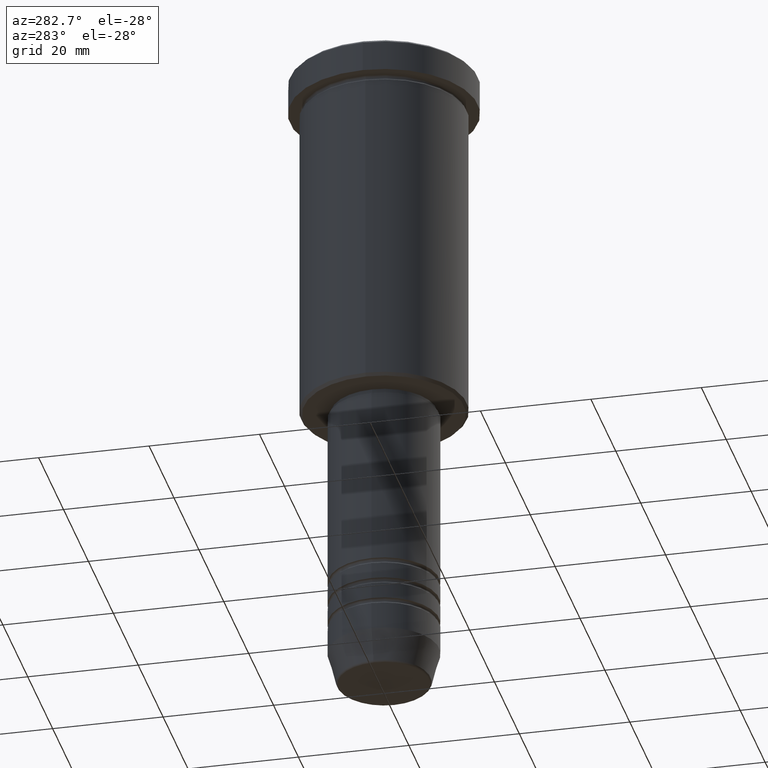
[diagram: clean part render]
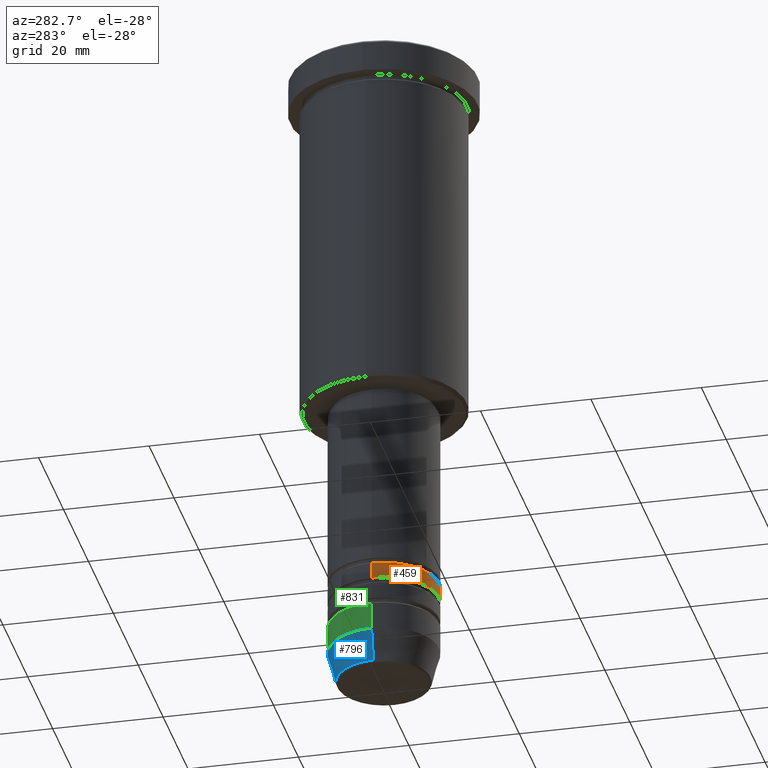
[diagram: same view with three faces highlighted in distinct colors, each labeled with its STEP entity id]
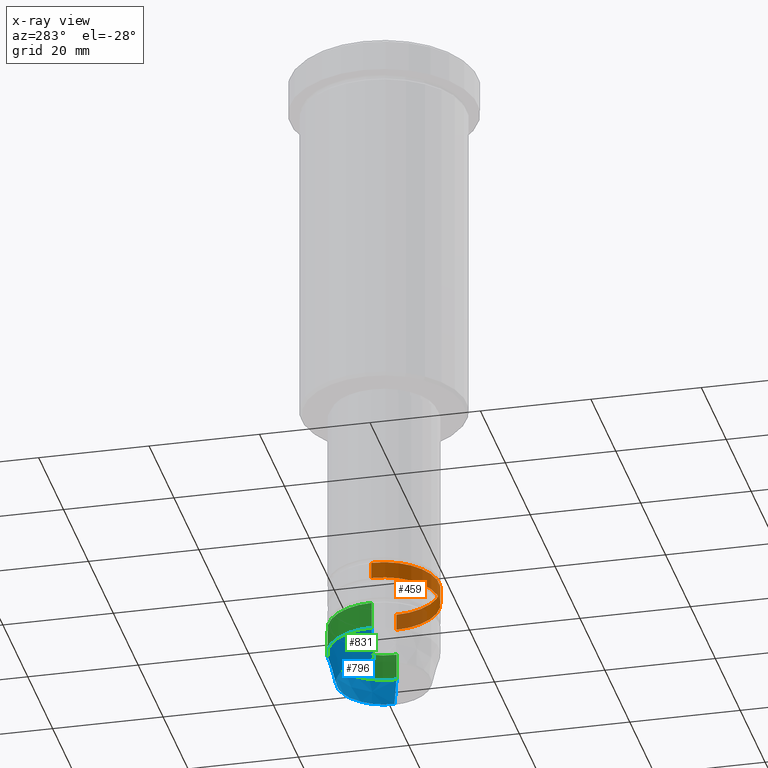
[diagram: x-ray of the same camera — body ghosted, the three highlighted faces saturated]
A machine part, auxiliary view with three faces highlighted in distinct colors.
The next image is the same camera in x-ray (body ghosted, the three faces saturated) — at least one of them is partly hidden behind the body in this view.
Their STEP definitions:

[orange] entity #459 — the highlighted cylindrical surface (partial cylindrical patch) has radius 10 mm, axis along (-0, -0, 1).
#5 = DIRECTION ( 'NONE',  ( 1.000000000000000000, 0.000000000000000000, 0.000000000000000000 ) ) ;
#71 = CARTESIAN_POINT ( 'NONE',  ( 10.00000000000000178, 0.000000000000000000, -103.9999999999999858 ) ) ;
#79 = CARTESIAN_POINT ( 'NONE',  ( 10.00000000000000000, 0.000000000000000000, -100.9999999999999716 ) ) ;
#124 = CARTESIAN_POINT ( 'NONE',  ( -10.00000000000000178, 1.224646799147353454E-15, 0.000000000000000000 ) ) ;
#164 = ORIENTED_EDGE ( 'NONE', *, *, #1044, .F. ) ;
#180 = CARTESIAN_POINT ( 'NONE',  ( -10.00000000000000000, 1.224646799147353256E-15, -100.9999999999999716 ) ) ;
#286 = EDGE_CURVE ( 'NONE', #675, #645, #1057, .T. ) ;
#298 = CARTESIAN_POINT ( 'NONE',  ( 0.000000000000000000, 0.000000000000000000, 0.000000000000000000 ) ) ;
#304 = EDGE_CURVE ( 'NONE', #675, #785, #1030, .T. ) ;
#326 = DIRECTION ( 'NONE',  ( -0.000000000000000000, -0.000000000000000000, 1.000000000000000000 ) ) ;
#345 = VERTEX_POINT ( 'NONE', #79 ) ;
#368 = VECTOR ( 'NONE', #326, 1000.000000000000000 ) ;
#381 = CYLINDRICAL_SURFACE ( 'NONE', #698, 10.00000000000000178 ) ;
#415 = LINE ( 'NONE', #1045, #368 ) ;
#423 = EDGE_LOOP ( 'NONE', ( #975, #450, #971, #164 ) ) ;
#428 = AXIS2_PLACEMENT_3D ( 'NONE', #786, #518, #804 ) ;
#450 = ORIENTED_EDGE ( 'NONE', *, *, #286, .T. ) ;
#459 = ADVANCED_FACE ( 'NONE', ( #479 ), #381, .T. ) ;
#477 = CARTESIAN_POINT ( 'NONE',  ( 0.000000000000000000, 0.000000000000000000, -103.9999999999999858 ) ) ;
#479 = FACE_OUTER_BOUND ( 'NONE', #423, .T. ) ;
#518 = DIRECTION ( 'NONE',  ( -0.000000000000000000, -0.000000000000000000, 1.000000000000000000 ) ) ;
#550 = AXIS2_PLACEMENT_3D ( 'NONE', #477, #667, #5 ) ;
#622 = VECTOR ( 'NONE', #823, 1000.000000000000000 ) ;
#645 = VERTEX_POINT ( 'NONE', #71 ) ;
#667 = DIRECTION ( 'NONE',  ( -0.000000000000000000, -0.000000000000000000, 1.000000000000000000 ) ) ;
#675 = VERTEX_POINT ( 'NONE', #953 ) ;
#698 = AXIS2_PLACEMENT_3D ( 'NONE', #298, #1027, #1125 ) ;
#785 = VERTEX_POINT ( 'NONE', #180 ) ;
#786 = CARTESIAN_POINT ( 'NONE',  ( 0.000000000000000000, 0.000000000000000000, -100.9999999999999716 ) ) ;
#804 = DIRECTION ( 'NONE',  ( 1.000000000000000000, 0.000000000000000000, 0.000000000000000000 ) ) ;
#823 = DIRECTION ( 'NONE',  ( -0.000000000000000000, -0.000000000000000000, 1.000000000000000000 ) ) ;
#933 = EDGE_CURVE ( 'NONE', #645, #345, #415, .T. ) ;
#953 = CARTESIAN_POINT ( 'NONE',  ( -10.00000000000000178, 1.224646799147353454E-15, -103.9999999999999858 ) ) ;
#955 = CIRCLE ( 'NONE', #428, 10.00000000000000000 ) ;
#971 = ORIENTED_EDGE ( 'NONE', *, *, #933, .T. ) ;
#975 = ORIENTED_EDGE ( 'NONE', *, *, #304, .F. ) ;
#1027 = DIRECTION ( 'NONE',  ( -0.000000000000000000, -0.000000000000000000, 1.000000000000000000 ) ) ;
#1030 = LINE ( 'NONE', #124, #622 ) ;
#1044 = EDGE_CURVE ( 'NONE', #785, #345, #955, .T. ) ;
#1045 = CARTESIAN_POINT ( 'NONE',  ( 10.00000000000000178, 0.000000000000000000, 0.000000000000000000 ) ) ;
#1057 = CIRCLE ( 'NONE', #550, 10.00000000000000178 ) ;
#1125 = DIRECTION ( 'NONE',  ( 1.000000000000000000, 0.000000000000000000, 0.000000000000000000 ) ) ;

[blue] entity #796 — the highlighted conical surface has half-angle 15 deg.
#25 = CARTESIAN_POINT ( 'NONE',  ( 10.00000000000000178, 0.000000000000000000, -113.9999999999999858 ) ) ;
#50 = VERTEX_POINT ( 'NONE', #158 ) ;
#150 = EDGE_CURVE ( 'NONE', #506, #50, #861, .T. ) ;
#158 = CARTESIAN_POINT ( 'NONE',  ( -8.491604264568312743, 1.132284198685156781E-15, -119.6294095225512564 ) ) ;
#160 = ORIENTED_EDGE ( 'NONE', *, *, #880, .F. ) ;
#169 = EDGE_CURVE ( 'NONE', #50, #493, #1059, .T. ) ;
#245 = DIRECTION ( 'NONE',  ( -0.2588190451025214056, 3.169619151431772953E-17, 0.9659258262890680902 ) ) ;
#290 = CARTESIAN_POINT ( 'NONE',  ( 8.491604264568312743, 0.000000000000000000, -119.6294095225512564 ) ) ;
#299 = VERTEX_POINT ( 'NONE', #646 ) ;
#327 = DIRECTION ( 'NONE',  ( -0.000000000000000000, -0.000000000000000000, 1.000000000000000000 ) ) ;
#331 = AXIS2_PLACEMENT_3D ( 'NONE', #874, #327, #405 ) ;
#337 = ORIENTED_EDGE ( 'NONE', *, *, #169, .T. ) ;
#347 = DIRECTION ( 'NONE',  ( 1.000000000000000000, 0.000000000000000000, 0.000000000000000000 ) ) ;
#402 = ORIENTED_EDGE ( 'NONE', *, *, #1073, .F. ) ;
#405 = DIRECTION ( 'NONE',  ( 1.000000000000000000, 0.000000000000000000, 0.000000000000000000 ) ) ;
#433 = CONICAL_SURFACE ( 'NONE', #925, 10.00000000000000178, 0.2617993877991501295 ) ;
#453 = DIRECTION ( 'NONE',  ( -0.000000000000000000, -0.000000000000000000, 1.000000000000000000 ) ) ;
#471 = CIRCLE ( 'NONE', #639, 10.00000000000000178 ) ;
#482 = DIRECTION ( 'NONE',  ( 0.2588190451025214056, 0.000000000000000000, 0.9659258262890680902 ) ) ;
#493 = VERTEX_POINT ( 'NONE', #1043 ) ;
#506 = VERTEX_POINT ( 'NONE', #290 ) ;
#519 = CARTESIAN_POINT ( 'NONE',  ( -10.00000000000000178, 1.224646799147353454E-15, -113.9999999999999858 ) ) ;
#524 = CARTESIAN_POINT ( 'NONE',  ( 0.000000000000000000, 0.000000000000000000, -113.9999999999999858 ) ) ;
#533 = VECTOR ( 'NONE', #482, 1000.000000000000000 ) ;
#638 = FACE_OUTER_BOUND ( 'NONE', #990, .T. ) ;
#639 = AXIS2_PLACEMENT_3D ( 'NONE', #524, #453, #873 ) ;
#646 = CARTESIAN_POINT ( 'NONE',  ( 10.00000000000000178, 0.000000000000000000, -113.9999999999999858 ) ) ;
#729 = CARTESIAN_POINT ( 'NONE',  ( 0.000000000000000000, 0.000000000000000000, -113.9999999999999858 ) ) ;
#767 = LINE ( 'NONE', #25, #533 ) ;
#796 = ADVANCED_FACE ( 'NONE', ( #638 ), #433, .T. ) ;
#861 = CIRCLE ( 'NONE', #331, 8.491604264568312743 ) ;
#873 = DIRECTION ( 'NONE',  ( 1.000000000000000000, 0.000000000000000000, 0.000000000000000000 ) ) ;
#874 = CARTESIAN_POINT ( 'NONE',  ( 0.000000000000000000, 0.000000000000000000, -119.6294095225512564 ) ) ;
#880 = EDGE_CURVE ( 'NONE', #506, #299, #767, .T. ) ;
#884 = VECTOR ( 'NONE', #245, 1000.000000000000000 ) ;
#899 = ORIENTED_EDGE ( 'NONE', *, *, #150, .T. ) ;
#925 = AXIS2_PLACEMENT_3D ( 'NONE', #729, #989, #347 ) ;
#989 = DIRECTION ( 'NONE',  ( -0.000000000000000000, -0.000000000000000000, 1.000000000000000000 ) ) ;
#990 = EDGE_LOOP ( 'NONE', ( #899, #337, #402, #160 ) ) ;
#1043 = CARTESIAN_POINT ( 'NONE',  ( -10.00000000000000178, 1.224646799147353454E-15, -113.9999999999999858 ) ) ;
#1059 = LINE ( 'NONE', #519, #884 ) ;
#1073 = EDGE_CURVE ( 'NONE', #299, #493, #471, .T. ) ;

[green] entity #831 — the highlighted cylindrical surface (partial cylindrical patch) has radius 10 mm, axis along (-0, -0, 1).
#11 = AXIS2_PLACEMENT_3D ( 'NONE', #822, #106, #898 ) ;
#43 = CARTESIAN_POINT ( 'NONE',  ( 0.000000000000000000, 0.000000000000000000, -108.9999999999999858 ) ) ;
#48 = CARTESIAN_POINT ( 'NONE',  ( -10.00000000000000000, 1.224646799147353256E-15, -108.9999999999999858 ) ) ;
#75 = ORIENTED_EDGE ( 'NONE', *, *, #1036, .T. ) ;
#106 = DIRECTION ( 'NONE',  ( -0.000000000000000000, -0.000000000000000000, 1.000000000000000000 ) ) ;
#147 = ORIENTED_EDGE ( 'NONE', *, *, #532, .F. ) ;
#181 = ORIENTED_EDGE ( 'NONE', *, *, #1073, .T. ) ;
#248 = CARTESIAN_POINT ( 'NONE',  ( 10.00000000000000178, 0.000000000000000000, 0.000000000000000000 ) ) ;
#250 = DIRECTION ( 'NONE',  ( -0.000000000000000000, -0.000000000000000000, 1.000000000000000000 ) ) ;
#259 = LINE ( 'NONE', #248, #475 ) ;
#276 = VECTOR ( 'NONE', #250, 1000.000000000000000 ) ;
#282 = CARTESIAN_POINT ( 'NONE',  ( 10.00000000000000000, 0.000000000000000000, -108.9999999999999858 ) ) ;
#299 = VERTEX_POINT ( 'NONE', #646 ) ;
#431 = CIRCLE ( 'NONE', #958, 10.00000000000000000 ) ;
#453 = DIRECTION ( 'NONE',  ( -0.000000000000000000, -0.000000000000000000, 1.000000000000000000 ) ) ;
#471 = CIRCLE ( 'NONE', #639, 10.00000000000000178 ) ;
#475 = VECTOR ( 'NONE', #867, 1000.000000000000000 ) ;
#486 = DIRECTION ( 'NONE',  ( 1.000000000000000000, 0.000000000000000000, 0.000000000000000000 ) ) ;
#493 = VERTEX_POINT ( 'NONE', #1043 ) ;
#524 = CARTESIAN_POINT ( 'NONE',  ( 0.000000000000000000, 0.000000000000000000, -113.9999999999999858 ) ) ;
#532 = EDGE_CURVE ( 'NONE', #803, #965, #431, .T. ) ;
#546 = CYLINDRICAL_SURFACE ( 'NONE', #11, 10.00000000000000178 ) ;
#557 = FACE_OUTER_BOUND ( 'NONE', #885, .T. ) ;
#639 = AXIS2_PLACEMENT_3D ( 'NONE', #524, #453, #873 ) ;
#646 = CARTESIAN_POINT ( 'NONE',  ( 10.00000000000000178, 0.000000000000000000, -113.9999999999999858 ) ) ;
#704 = EDGE_CURVE ( 'NONE', #299, #803, #259, .T. ) ;
#775 = CARTESIAN_POINT ( 'NONE',  ( -10.00000000000000178, 1.224646799147353454E-15, 0.000000000000000000 ) ) ;
#803 = VERTEX_POINT ( 'NONE', #282 ) ;
#822 = CARTESIAN_POINT ( 'NONE',  ( 0.000000000000000000, 0.000000000000000000, 0.000000000000000000 ) ) ;
#831 = ADVANCED_FACE ( 'NONE', ( #557 ), #546, .T. ) ;
#863 = LINE ( 'NONE', #775, #276 ) ;
#867 = DIRECTION ( 'NONE',  ( -0.000000000000000000, -0.000000000000000000, 1.000000000000000000 ) ) ;
#873 = DIRECTION ( 'NONE',  ( 1.000000000000000000, 0.000000000000000000, 0.000000000000000000 ) ) ;
#885 = EDGE_LOOP ( 'NONE', ( #181, #75, #147, #1127 ) ) ;
#898 = DIRECTION ( 'NONE',  ( 1.000000000000000000, 0.000000000000000000, 0.000000000000000000 ) ) ;
#947 = DIRECTION ( 'NONE',  ( -0.000000000000000000, -0.000000000000000000, 1.000000000000000000 ) ) ;
#958 = AXIS2_PLACEMENT_3D ( 'NONE', #43, #947, #486 ) ;
#965 = VERTEX_POINT ( 'NONE', #48 ) ;
#1036 = EDGE_CURVE ( 'NONE', #493, #965, #863, .T. ) ;
#1043 = CARTESIAN_POINT ( 'NONE',  ( -10.00000000000000178, 1.224646799147353454E-15, -113.9999999999999858 ) ) ;
#1073 = EDGE_CURVE ( 'NONE', #299, #493, #471, .T. ) ;
#1127 = ORIENTED_EDGE ( 'NONE', *, *, #704, .F. ) ;